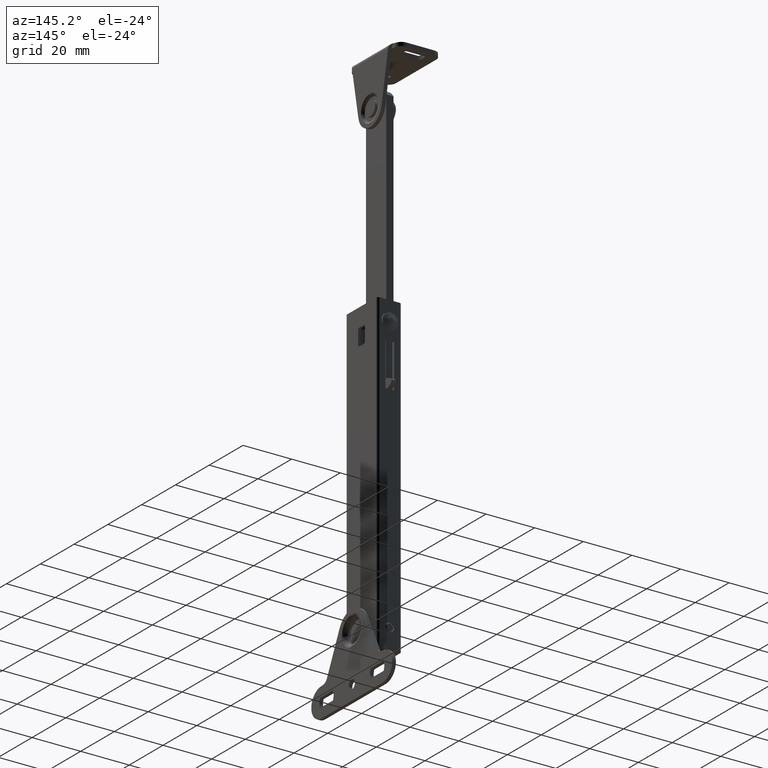
[diagram: clean part render]
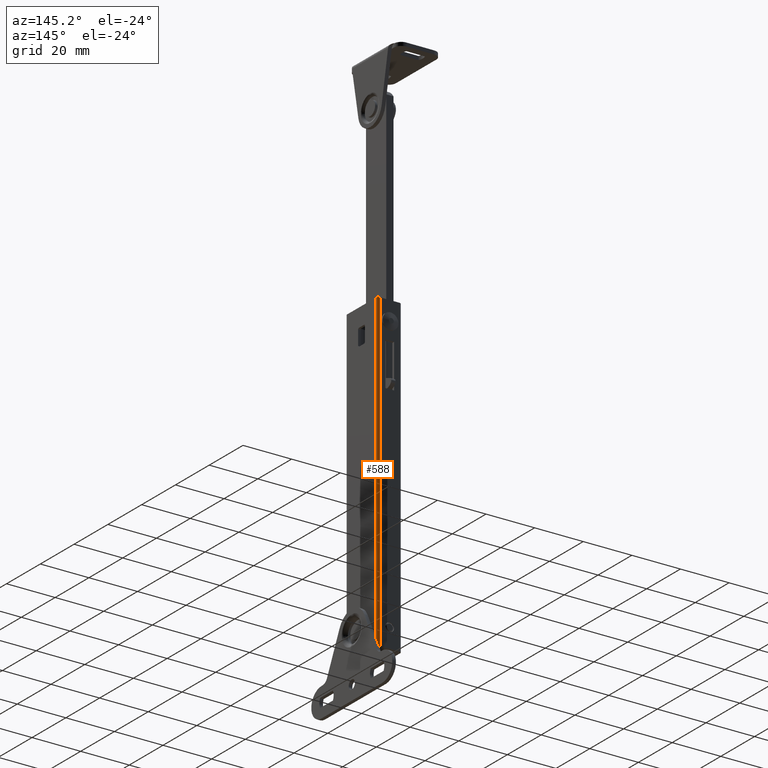
[diagram: same view with one face highlighted and labeled with its STEP entity id]
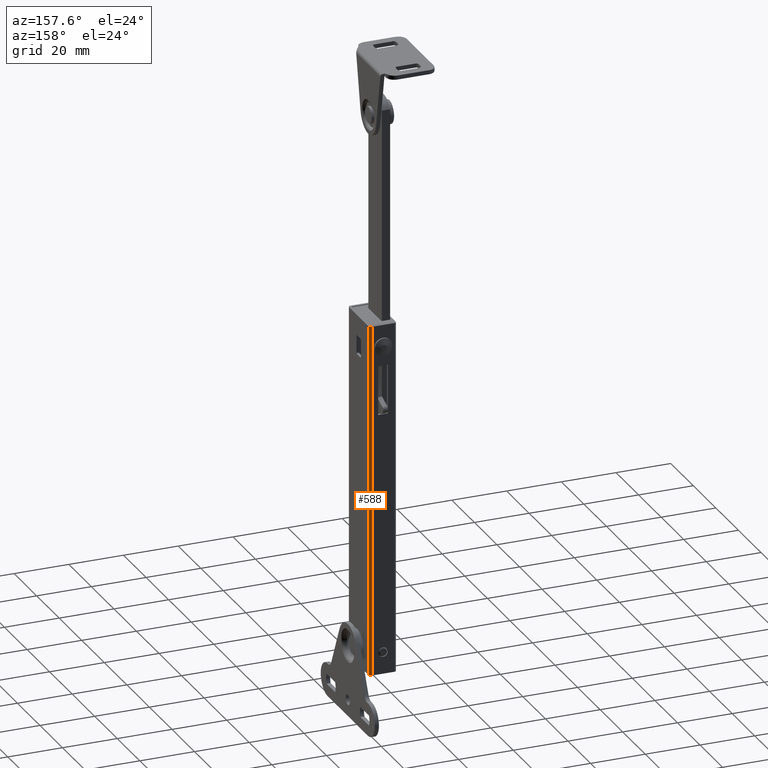
[diagram: same view with one face highlighted and labeled with its STEP entity id]
A machine part, auxiliary view. The second image highlights one B-rep face of the part: STEP entity #588.
A second angle (auxiliary view) of the same face is appended — the face is thin or edge-on in the first view.
In plain terms, the highlighted cylindrical surface (edge-blend (fillet) strip) has radius 1 mm, axis along (-0, -0, -1).
Its self-contained STEP definition (entity closure, byte-faithful):
#588=ADVANCED_FACE('',(#2370),#2369,.T.);
#2369=CYLINDRICAL_SURFACE('',#3988,1.00000000000E+00);
#2370=FACE_OUTER_BOUND('',#3989,.T.);
#3985=CARTESIAN_POINT('',(-1.00000000000E+00,8.50000000000E+00,-8.79000000000E+02));
#3986=DIRECTION('',(-0.00000000000E+00,-0.00000000000E+00,-1.00000000000E+00));
#3987=DIRECTION('',(-1.00000000000E+00,-0.00000000000E+00,-0.00000000000E+00));
#3988=AXIS2_PLACEMENT_3D('',#3985,#3986,#3987);
#3989=EDGE_LOOP('',(#5021,#5022,#5023,#5024));
#5021=ORIENTED_EDGE('',*,*,#5640,.T.);
#5022=ORIENTED_EDGE('',*,*,#5641,.F.);
#5023=ORIENTED_EDGE('',*,*,#5600,.F.);
#5024=ORIENTED_EDGE('',*,*,#5631,.T.);
#5600=EDGE_CURVE('',#8458,#8465,#8466,.T.);
#5631=EDGE_CURVE('',#8458,#8667,#8674,.T.);
#5640=EDGE_CURVE('',#8667,#8736,#8737,.T.);
#5641=EDGE_CURVE('',#8465,#8736,#8743,.T.);
#8458=VERTEX_POINT('',#10758);
#8465=VERTEX_POINT('',#10762);
#8466=CIRCLE('',#10766,1.00000000000E+00);
#8667=VERTEX_POINT('',#10886);
#8674=LINE('',#10890,#10891);
#8736=VERTEX_POINT('',#10929);
#8737=CIRCLE('',#10933,1.00000000000E+00);
#8743=LINE('',#10934,#10935);
#10758=CARTESIAN_POINT('',(-1.00000005236E+00,9.50000000000E+00,-8.00000000000E+00));
#10762=CARTESIAN_POINT('',(0.00000000000E+00,8.50000000000E+00,-8.00000000000E+00));
#10763=CARTESIAN_POINT('',(-1.00000000000E+00,8.50000000000E+00,-8.00000000000E+00));
#10764=DIRECTION('',(0.00000000000E+00,0.00000000000E+00,-1.00000000000E+00));
#10765=DIRECTION('',(-1.00000000000E+00,-0.00000000000E+00,-0.00000000000E+00));
#10766=AXIS2_PLACEMENT_3D('',#10763,#10764,#10765);
#10886=CARTESIAN_POINT('',(-1.00000005236E+00,9.50000000000E+00,1.21000000000E+02));
#10890=CARTESIAN_POINT('',(-1.00000005236E+00,9.50000000000E+00,-8.00000000000E+00));
#10891=VECTOR('',#10892,1.29000000000E+02);
#10892=DIRECTION('',(0.00000000000E+00,0.00000000000E+00,1.00000000000E+00));
#10929=CARTESIAN_POINT('',(0.00000000000E+00,8.50000000000E+00,1.21000000000E+02));
#10930=CARTESIAN_POINT('',(-1.00000000000E+00,8.50000000000E+00,1.21000000000E+02));
#10931=DIRECTION('',(0.00000000000E+00,0.00000000000E+00,-1.00000000000E+00));
#10932=DIRECTION('',(-1.00000000000E+00,-0.00000000000E+00,-0.00000000000E+00));
#10933=AXIS2_PLACEMENT_3D('',#10930,#10931,#10932);
#10934=CARTESIAN_POINT('',(0.00000000000E+00,8.50000000000E+00,-8.00000000000E+00));
#10935=VECTOR('',#10936,1.29000000000E+02);
#10936=DIRECTION('',(0.00000000000E+00,0.00000000000E+00,1.00000000000E+00));